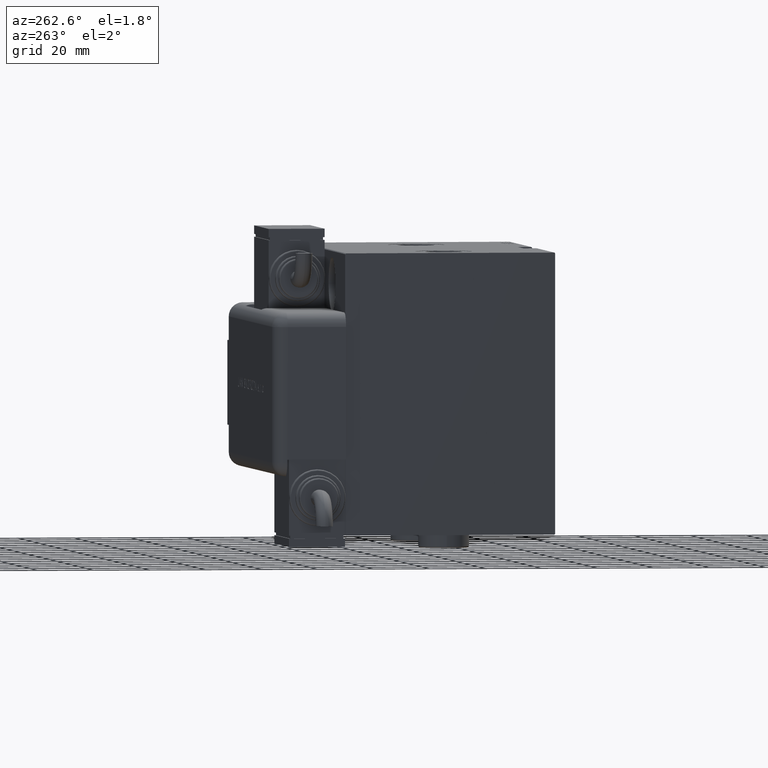
[diagram: clean part render]
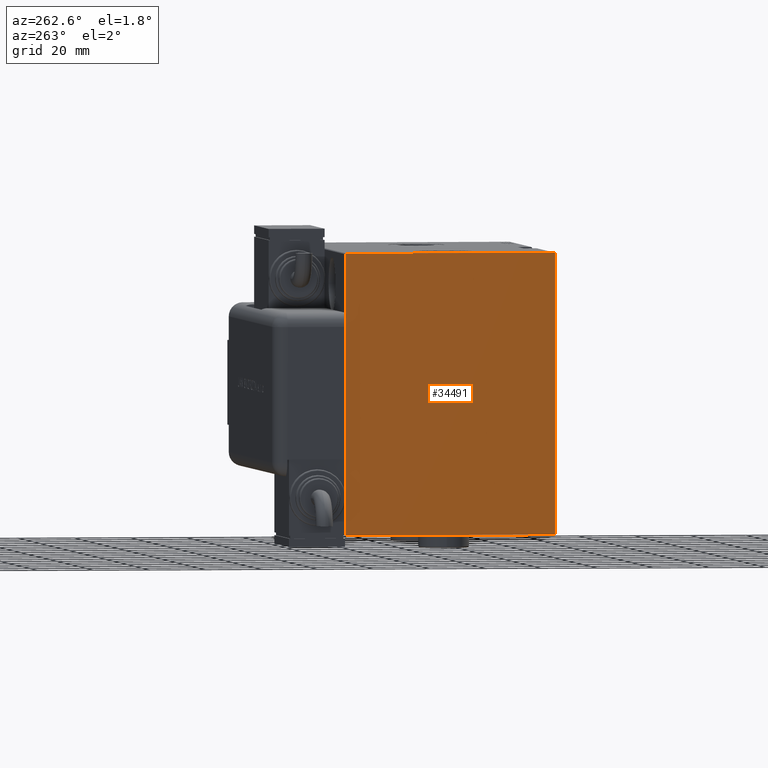
[diagram: same view with one face highlighted and labeled with its STEP entity id]
A machine part, auxiliary view. The second image highlights one B-rep face of the part: STEP entity #34491.
In plain terms, the highlighted planar face has unit normal (-1, 0, 0).
Its self-contained STEP definition (entity closure, byte-faithful):
#1326 = ORIENTED_EDGE ( 'NONE', *, *, #26860, .T. ) ;
#1577 = CARTESIAN_POINT ( 'NONE',  ( 123.0000000000000000, -43.60000000000000853, -43.60000000000000853 ) ) ;
#1817 = ORIENTED_EDGE ( 'NONE', *, *, #22981, .T. ) ;
#2063 = VECTOR ( 'NONE', #22205, 1000.000000000000000 ) ;
#2124 = ORIENTED_EDGE ( 'NONE', *, *, #51703, .T. ) ;
#3841 = ORIENTED_EDGE ( 'NONE', *, *, #52444, .T. ) ;
#4664 = DIRECTION ( 'NONE',  ( 1.000000000000000000, 0.000000000000000000, 0.000000000000000000 ) ) ;
#4795 = ORIENTED_EDGE ( 'NONE', *, *, #26006, .T. ) ;
#4869 = CARTESIAN_POINT ( 'NONE',  ( 123.0000000000000000, -37.50000000000000000, 50.00000000000000000 ) ) ;
#5485 = DIRECTION ( 'NONE',  ( 0.000000000000000000, 0.000000000000000000, -1.000000000000000000 ) ) ;
#5691 = VECTOR ( 'NONE', #7552, 1000.000000000000000 ) ;
#6534 = VECTOR ( 'NONE', #43790, 1000.000000000000114 ) ;
#7552 = DIRECTION ( 'NONE',  ( -0.000000000000000000, -0.7071067811865393571, 0.7071067811865556774 ) ) ;
#9208 = VERTEX_POINT ( 'NONE', #37331 ) ;
#9489 = LINE ( 'NONE', #43552, #50961 ) ;
#11589 = CARTESIAN_POINT ( 'NONE',  ( 123.0000000000000000, -37.20000000000000284, -50.00000000000001421 ) ) ;
#13236 = ORIENTED_EDGE ( 'NONE', *, *, #52074, .T. ) ;
#14359 = DIRECTION ( 'NONE',  ( 0.000000000000000000, 0.000000000000000000, -1.000000000000000000 ) ) ;
#14955 = CARTESIAN_POINT ( 'NONE',  ( 123.0000000000000000, -37.50000000000000000, -49.70000000000002416 ) ) ;
#20830 = VERTEX_POINT ( 'NONE', #43826 ) ;
#22205 = DIRECTION ( 'NONE',  ( 0.000000000000000000, -1.000000000000000000, -1.850371707708594563E-16 ) ) ;
#22981 = EDGE_CURVE ( 'NONE', #27249, #53178, #30356, .T. ) ;
#23055 = VECTOR ( 'NONE', #5485, 1000.000000000000000 ) ;
#23467 = AXIS2_PLACEMENT_3D ( 'NONE', #28435, #4664, #14359 ) ;
#24869 = EDGE_CURVE ( 'NONE', #50543, #9208, #36075, .T. ) ;
#26006 = EDGE_CURVE ( 'NONE', #20830, #54484, #31337, .T. ) ;
#26860 = EDGE_CURVE ( 'NONE', #52257, #52691, #37248, .T. ) ;
#27249 = VERTEX_POINT ( 'NONE', #14955 ) ;
#28435 = CARTESIAN_POINT ( 'NONE',  ( 123.0000000000000000, 0.000000000000000000, 0.000000000000000000 ) ) ;
#29542 = VECTOR ( 'NONE', #55687, 1000.000000000000000 ) ;
#30356 = LINE ( 'NONE', #1577, #6534 ) ;
#30899 = CARTESIAN_POINT ( 'NONE',  ( 123.0000000000000000, 37.50000000000000711, -49.70000000000003126 ) ) ;
#31011 = DIRECTION ( 'NONE',  ( 0.000000000000000000, 1.000000000000000000, 9.251858538542970348E-17 ) ) ;
#31337 = LINE ( 'NONE', #50377, #5691 ) ;
#32960 = DIRECTION ( 'NONE',  ( 0.000000000000000000, -1.387778780781445182E-16, 1.000000000000000000 ) ) ;
#33650 = LINE ( 'NONE', #4869, #23055 ) ;
#34491 = ADVANCED_FACE ( 'NONE', ( #38736 ), #47495, .T. ) ;
#36075 = LINE ( 'NONE', #40758, #36637 ) ;
#36637 = VECTOR ( 'NONE', #44511, 1000.000000000000000 ) ;
#37248 = LINE ( 'NONE', #37566, #29542 ) ;
#37331 = CARTESIAN_POINT ( 'NONE',  ( 123.0000000000000000, -37.50000000000000000, 49.70000000000000995 ) ) ;
#37566 = CARTESIAN_POINT ( 'NONE',  ( 123.0000000000000000, 43.59999999999958220, -43.60000000000059117 ) ) ;
#38736 = FACE_OUTER_BOUND ( 'NONE', #43254, .T. ) ;
#40758 = CARTESIAN_POINT ( 'NONE',  ( 123.0000000000000000, -43.59999999999957510, 43.60000000000058407 ) ) ;
#40951 = LINE ( 'NONE', #51229, #2063 ) ;
#42389 = ORIENTED_EDGE ( 'NONE', *, *, #24869, .T. ) ;
#43254 = EDGE_LOOP ( 'NONE', ( #53014, #1326, #13236, #4795, #3841, #42389, #2124, #1817 ) ) ;
#43552 = CARTESIAN_POINT ( 'NONE',  ( 123.0000000000000000, 37.50000000000000711, -50.00000000000000711 ) ) ;
#43790 = DIRECTION ( 'NONE',  ( -0.000000000000000000, 0.7071067811865474617, -0.7071067811865474617 ) ) ;
#43826 = CARTESIAN_POINT ( 'NONE',  ( 123.0000000000000000, 37.49999999999999289, 49.70000000000003126 ) ) ;
#44511 = DIRECTION ( 'NONE',  ( 0.000000000000000000, -0.7071067811865556774, -0.7071067811865393571 ) ) ;
#46227 = VECTOR ( 'NONE', #31011, 1000.000000000000000 ) ;
#47495 = PLANE ( 'NONE',  #23467 ) ;
#49845 = CARTESIAN_POINT ( 'NONE',  ( 123.0000000000000000, 37.20000000000000995, 50.00000000000001421 ) ) ;
#50087 = CARTESIAN_POINT ( 'NONE',  ( 123.0000000000000000, 37.20000000000001705, -50.00000000000000711 ) ) ;
#50377 = CARTESIAN_POINT ( 'NONE',  ( 123.0000000000000000, 43.60000000000044196, 43.59999999999944009 ) ) ;
#50543 = VERTEX_POINT ( 'NONE', #56021 ) ;
#50961 = VECTOR ( 'NONE', #32960, 1000.000000000000000 ) ;
#51229 = CARTESIAN_POINT ( 'NONE',  ( 123.0000000000000000, 37.49999999999999289, 50.00000000000001421 ) ) ;
#51703 = EDGE_CURVE ( 'NONE', #9208, #27249, #33650, .T. ) ;
#52074 = EDGE_CURVE ( 'NONE', #52691, #20830, #9489, .T. ) ;
#52257 = VERTEX_POINT ( 'NONE', #50087 ) ;
#52444 = EDGE_CURVE ( 'NONE', #54484, #50543, #40951, .T. ) ;
#52691 = VERTEX_POINT ( 'NONE', #30899 ) ;
#53014 = ORIENTED_EDGE ( 'NONE', *, *, #59282, .T. ) ;
#53178 = VERTEX_POINT ( 'NONE', #11589 ) ;
#54484 = VERTEX_POINT ( 'NONE', #49845 ) ;
#54736 = CARTESIAN_POINT ( 'NONE',  ( 123.0000000000000000, -37.50000000000000000, -50.00000000000001421 ) ) ;
#55346 = LINE ( 'NONE', #54736, #46227 ) ;
#55687 = DIRECTION ( 'NONE',  ( -0.000000000000000000, 0.7071067811865556774, 0.7071067811865393571 ) ) ;
#56021 = CARTESIAN_POINT ( 'NONE',  ( 123.0000000000000000, -37.19999999999999574, 50.00000000000000000 ) ) ;
#59282 = EDGE_CURVE ( 'NONE', #53178, #52257, #55346, .T. ) ;